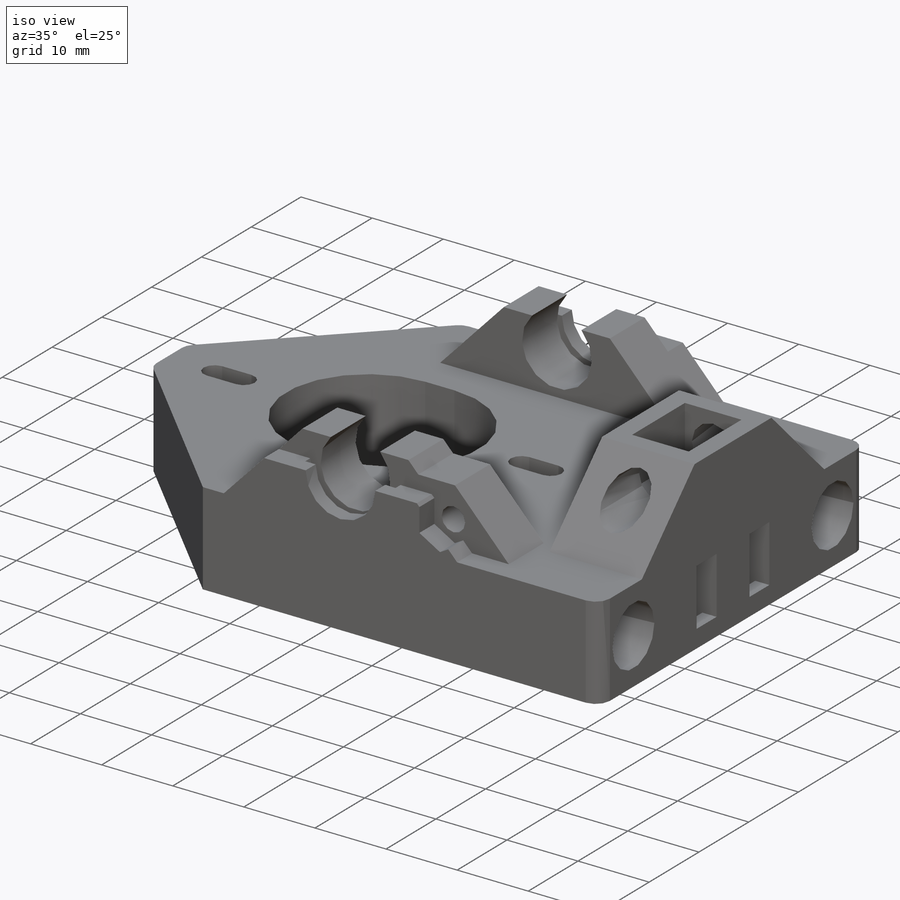
[diagram: iso view]
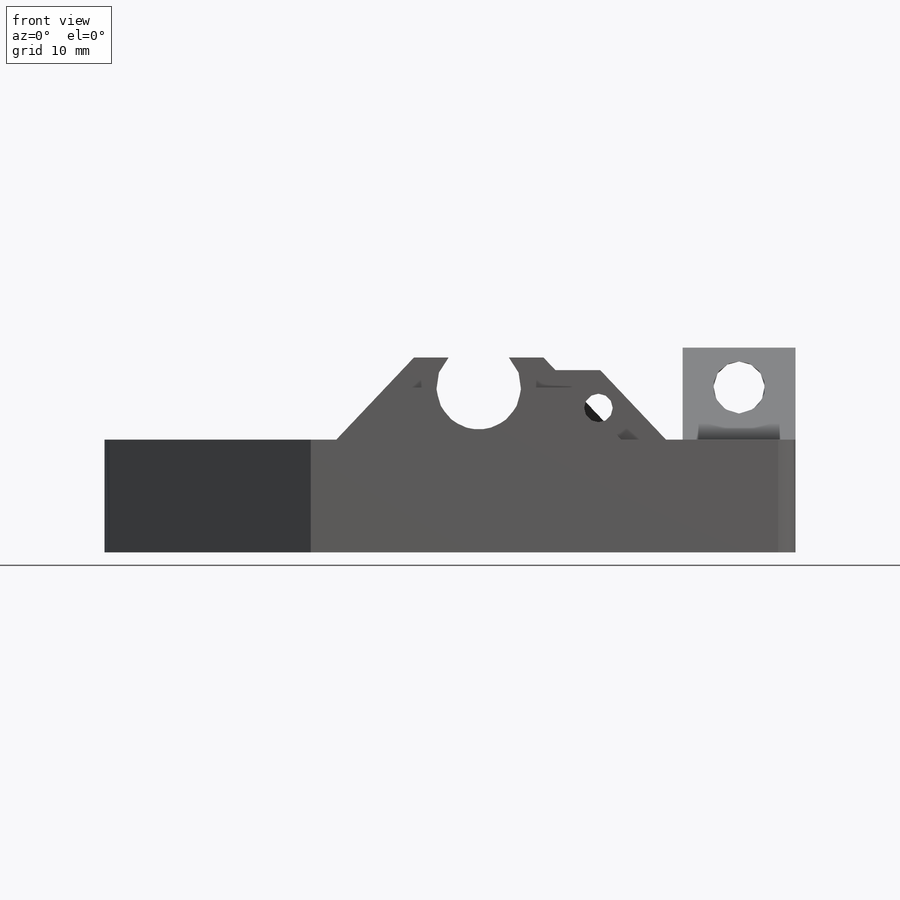
[diagram: front view]
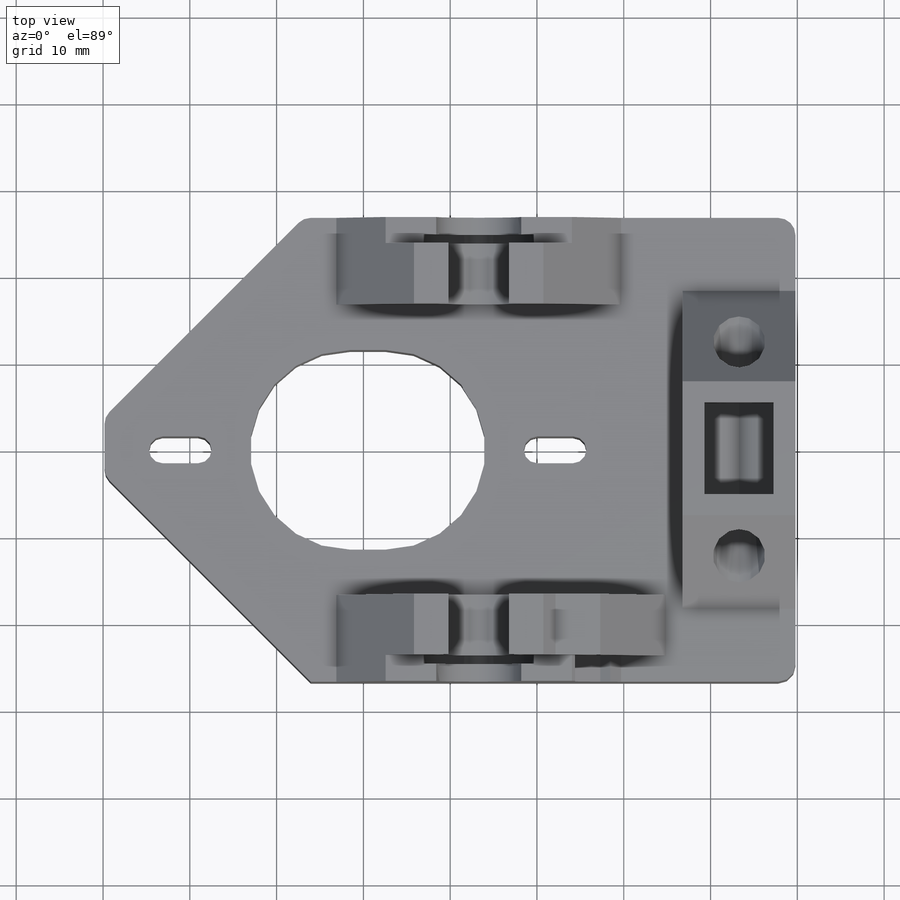
[diagram: top view]
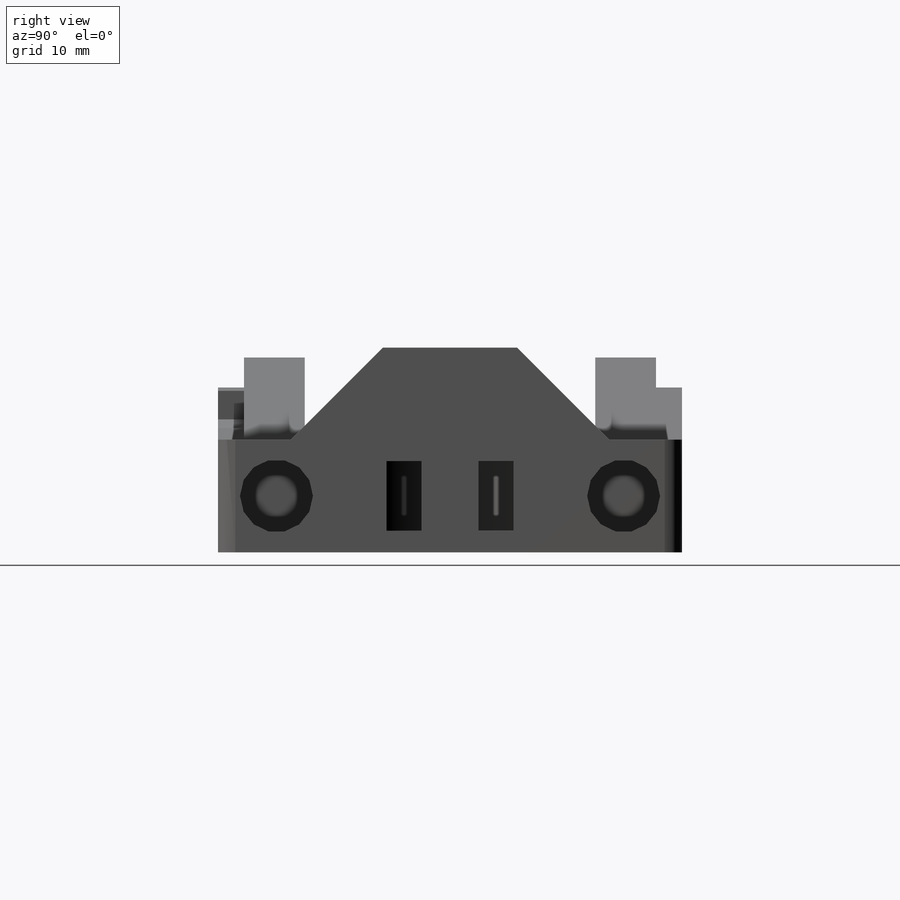
[diagram: right view]
SOLIDWORKS PART (.sldprt)
format: sldprt  version: not decoded by parser v0  size: 915,456 bytes
history: native  units: mm
features: sketch x24, cut_extrude x18, extrude x6, plane x4, mirror x4, fillet x2, material x1, chamfer x1 (+12 scaffold rows collapsed)
feature tree (72):
  scaffold x12  (default folders/planes/origin — collapsed)
  material  "Material <not specified>"
  sketch  "Sketch1"  dims[c1.D1=23.0mm c1.D2=5.0mm c1.D3=43.18mm c1.D4=3.1mm c1.D5=3.1mm c1.D6=3.1mm c1.D7=3.1mm c2.D4=3.1mm c2.D5=3.1mm c2.D6=3.1mm c2.D7=3.1mm c2.D9=3.1mm c2.D10=3.1mm c3.D5=3.1mm c3.D11=3.1mm c3.D4=3.1mm c3.D12=3.1mm c3.D7=~11.820059mm c3.D13=23.0mm c3.D14=23.0mm c4.D4=5.5mm c4.D5=1.55mm c4.D8=1.55mm c4.D10=1.55mm c5.D4=~1.551522mm c5.D12=11.5mm c5.D8=135.0deg c6.D8=42.0mm c6.D9=42.0mm c6.D6=1.55mm c6.D7=1.55mm c7.D9=8.0mm c7.D10=4.2mm c7.D12=4.2mm c8.D10=3.1mm c8.D12=135.0deg c8.D3=3.1mm c9.D10=20.04mm c9.D11=3.1mm c9.D12=~18.49038mm]
  extrude  "Boss-Extrude2"  Depth=13mm
  cut_extrude  "Cut-Extrude6"  [1 undecoded]
  sketch  "Sketch1<8>"
  cut_extrude  "Cut-Extrude7"  [1 undecoded]
  sketch  "Sketch1<9>"
  cut_extrude  "Cut-Extrude8"  [1 undecoded]
  sketch  "Sketch1<11>"  dims[D1=13.0mm]
  sketch  "Sketch7"  dims[c1.D1=8.4mm c1.D2=8.4mm c1.D3=8.0mm c1.D4=8.0mm c2.D3=7.0mm c2.D4=7.0mm c3.D3=20.0mm c3.D4=20.0mm]
  cut_extrude  "Cut-Extrude9"  Depth=30mm
  sketch  "Sketch9"  dims[c1.D2=8.0mm c1.D3=8.0mm c1.D4=9.8mm c1.D5=15.6mm c2.D2=20.0mm c2.D3=6.0mm c2.D6=125.0deg c3.D6=4.9mm c4.D6=45.0deg c4.D1=0.0mm]
  extrude  "Boss-Extrude3"  Depth=10mm
  plane  "Plane1"  Offset=2mm
  sketch  "Sketch10"  dims[D1=12.7mm]
  cut_extrude  "Cut-Extrude10"  Depth=1mm
  plane  "Plane3"
  mirror  "Mirror1"
  sketch  "Sketch12"  dims[D3=6.0mm D5=9.2mm D2=30.0mm D4=6.0mm D1=0.0mm]
  sketch  "Sketch13"  dims[D1=0.0mm]
  extrude  "Boss-Extrude4"  Depth=20.09mm
  sketch  "Sketch17"  dims[D1=13.0mm]
  extrude  "Boss-Extrude5"  Depth=10.6mm
  chamfer  "Chamfer1"  Distance=10.6mm Angle=45deg
  cut_extrude  "Cut-Extrude11"  [1 undecoded]
  plane  "Plane4"  Offset=20.58mm
  sketch  "Sketch24"  dims[D1=9.2mm]
  cut_extrude  "Cut-Extrude12"  Depth=5.3mm
  fillet  "Fillet2"  Radius=2mm
  sketch  "Sketch25"
  cut_extrude  "Cut-Extrude13"  [1 undecoded]
  sketch  "Sketch26"  dims[D1=0.0mm]
  cut_extrude  "Cut-Extrude14"  [1 undecoded]
  sketch  "Sketch27"  dims[D1=5.3mm D2=4.0mm D3=8.0mm]
  cut_extrude  "Cut-Extrude15"  [1 undecoded]
  mirror  "Mirror2"
  mirror  "Mirror3"
  sketch  "Sketch30"  dims[D1=2.0mm]
  extrude  "Boss-Extrude6"  Depth=8mm
  sketch  "Sketch28"
  cut_extrude  "Cut-Extrude16"  Depth=3mm
  mirror  "Mirror4"
  sketch  "Sketch31"  dims[c1.D1=6.4mm c1.D2=4.9mm c1.D3=4.9mm c2.D2=5.0mm c2.D3=4.0mm c3.D2=2.0mm c3.D3=14.0mm c3.D1=5.8mm]
  cut_extrude  "Cut-Extrude17"  [1 undecoded]
  sketch  "Sketch32"  dims[D2=3.3mm D3=3.2mm D1=0.0mm]
  sketch  "Sketch33"  dims[D1=2.4mm D2=3.5mm]
  cut_extrude  "Cut-Extrude19"  Depth=10mm
  fillet  "Fillet9"  Radius=2mm
  cut_extrude  "Cut-Extrude20"  Depth=10mm
  sketch  "Sketch34"
  extrude  "Boss-Extrude7"  Depth=5mm
  plane  "Plane5"  Offset=36.5mm
  sketch  "Sketch37"  dims[D2=1.0mm D3=1.0mm D1=0.0mm]
  cut_extrude  "Cut-Extrude22"  [1 undecoded]
  sketch  "Sketch38"  dims[D3=~6.287337mm D2=1.0mm D1=0.0mm]
  cut_extrude  "Cut-Extrude23"  [1 undecoded]
  sketch  "Sketch39"  dims[c1.D1=2.0mm c1.D2=2.0mm c2.D1=2.0mm c2.D2=2.0mm]
  cut_extrude  "Cut-Extrude24"  Depth=1mm
  sketch  "Sketch40"
  cut_extrude  "Cut-Extrude25"  [1 undecoded]
decode coverage: 34 of 55 modeling features carry decoded parameters
note: ~ marks probable driven/reference dimensions
note: 11 parameter values undecoded
summary: no parameter record found for 11 features
note: suppression state not decoded; provenance and decode notes live in map.json
